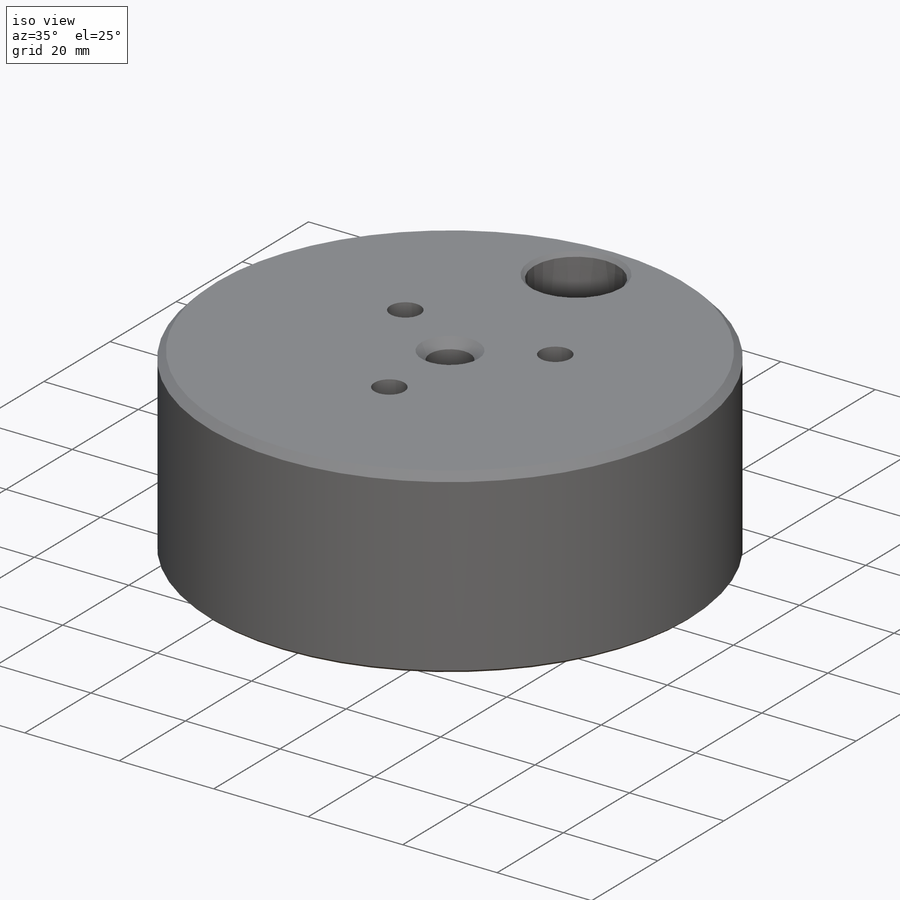
[diagram: iso view]
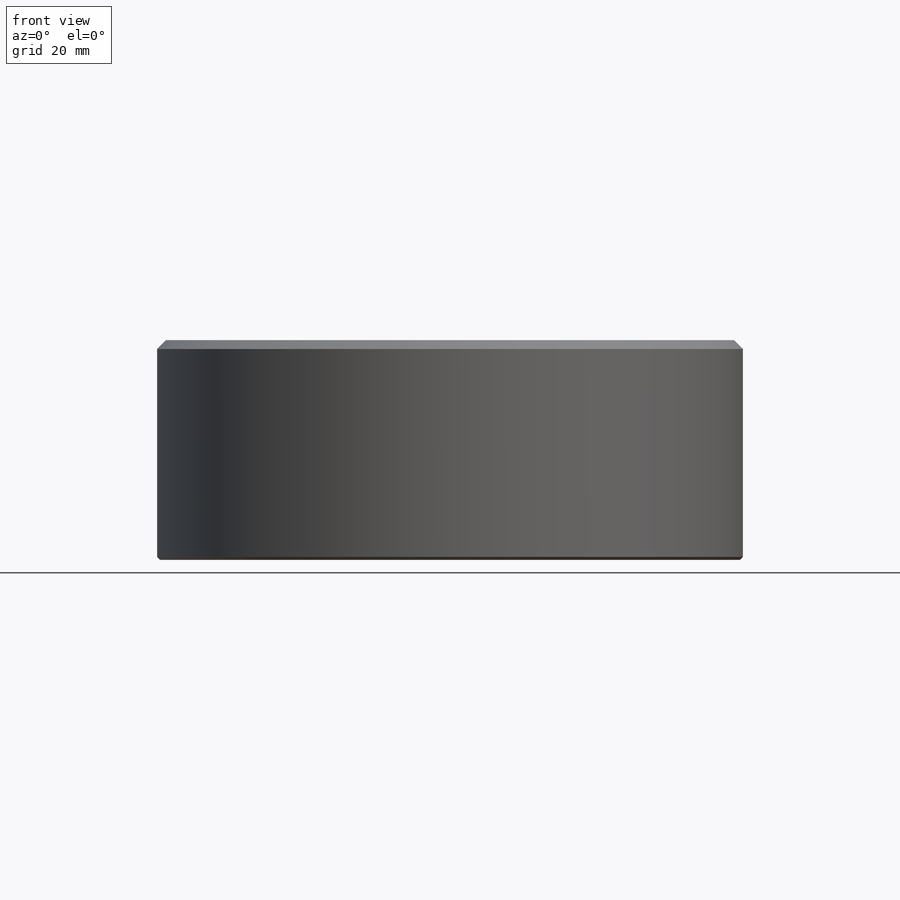
[diagram: front view]
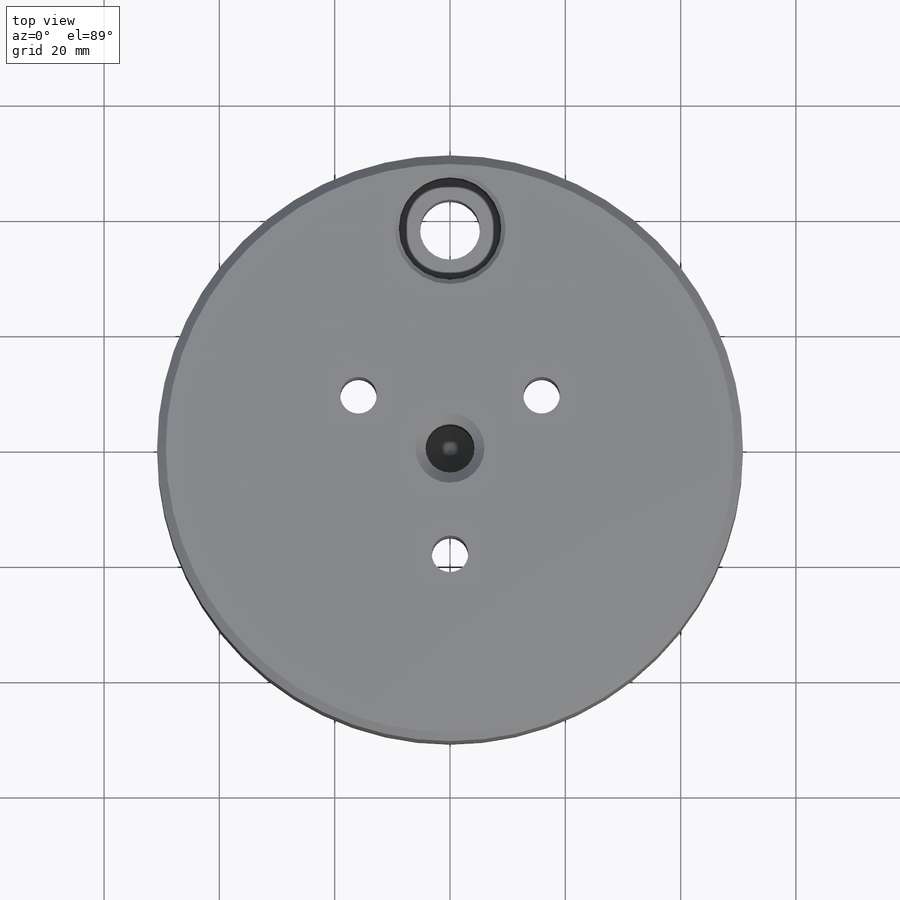
[diagram: top view]
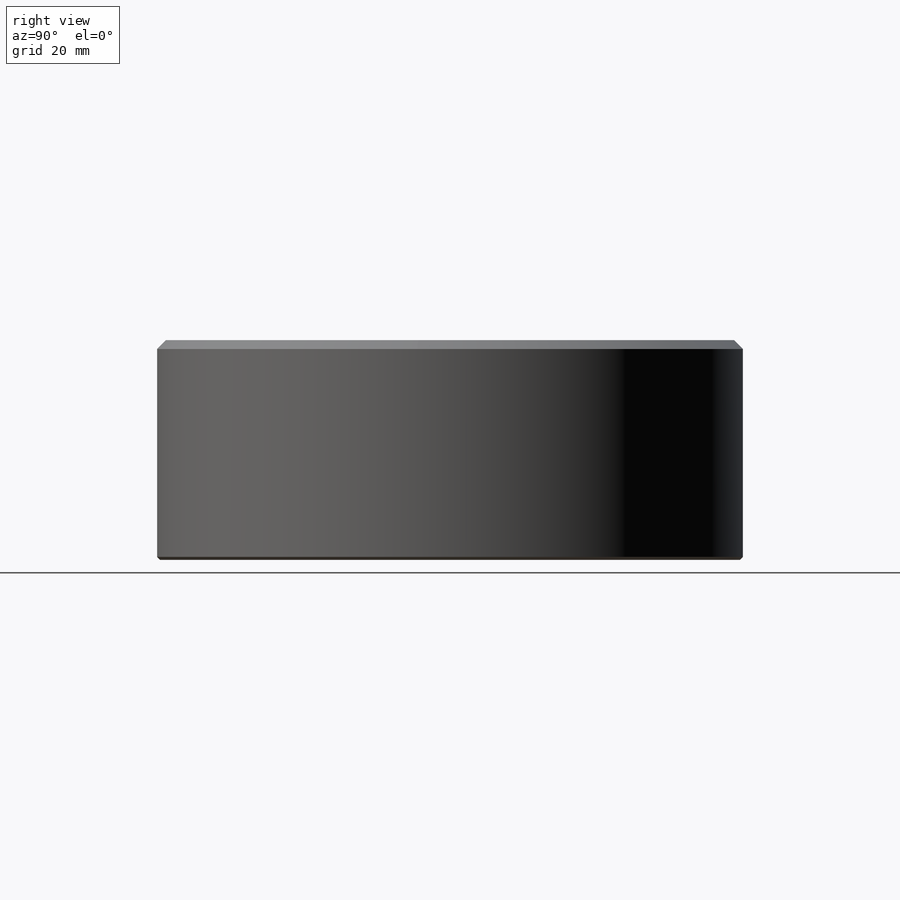
[diagram: right view]
SOLIDWORKS PART (.sldprt)
format: sldprt  version: not decoded by parser v0  size: 421,376 bytes
history: native  units: mm
features: sketch x8, chamfer x4, plane x3, revolve x2, hole x2, material x1, cut_revolve x1, thread x1, fillet x1, pattern_circular x1 + 2 further entries (+9 scaffold rows collapsed)
feature tree (35):
  scaffold x9  (default folders/planes/origin — collapsed)
  material  "Material <not specified>"
  plane  "Plane X-Y"
  plane  "Plane X-Z"
  plane  "Plane Y-Z"
  "Axis - Y"
  "Axis - Z"
  sketch  "Sketch1"  dims[c1.D1=0.508mm c1.D2=101.6mm c1.D3=85.725mm c1.D4=38.1mm c2.D3=85.725mm c2.D5=42.8625mm c3.D5=45.0deg]
  revolve  "Revolve1"  Angle=360deg
  sketch  "Sketch2"  dims[D1=38.1mm D2=10.414mm D3=17.78mm D4=11.43mm]
  cut_revolve  "Cut-Revolve1"  Angle=360deg
  hole  "M10x1.5 Tapped Hole1"  [1 undecoded]
  sketch  "Sketch4"
  thread  "Hole Thread1"  Diameter=19.9898mm  [1 undecoded]
  sketch  "Sketch3"  dims[hole-wizard template sketch: 40 standard entries collapsed; hole parameters kept: c13.Tap Drill Depth=24.4856mm c13.Near C'Sink Dia.=12.0mm c13.D4=~33.297463mm c13.Near C'Sink Angle=90.0deg c14.D5=~14.816244mm c14.Drill Angle=118.0deg]
  sketch  "Sketch6"  dims[D1=31.75mm]
  hole  "Hole1"  Diameter=20mm Depth=100mm
  sketch  "Sketch8"
  sketch  "Sketch9"  dims[c1.Hole Ø=20.0mm c1.Depth=100.0mm c1.Drill Angle=118.0deg c1.C.Sink Angle=90.0deg c1.C.Bore Ø=40.0mm c1.C.Bore Depth=20.0mm c1.Diameter=6.35mm c2.Depth=37.592mm c2.C-Bore Diameter=10.414mm c2.C-Bore Depth=6.35mm c2.Drill Angle=118.0deg]
  chamfer  "Chamfer1"  Distance=1.524mm Angle=45deg
  chamfer  "Chamfer2"  Distance=0.762mm Angle=45deg
  chamfer  "Chamfer3"  Distance=0.508mm Angle=45deg
  chamfer  "Chamfer4"  Distance=0.127mm Angle=45deg
  fillet  "Fillet1"  Radius=0.8128mm
  sketch  "Sketch10"  dims[D1=19.05mm D2=51.816mm]
  revolve  "Revolve2"  Angle=360deg
  pattern_circular  "CirPattern2"  Count=3 Angle=360deg
decode coverage: 17 of 20 modeling features carry decoded parameters; 2 rows unclassified (native names shown)
note: ~ marks probable driven/reference dimensions
note: 2 parameter values undecoded
note: suppression state not decoded; provenance and decode notes live in map.json
